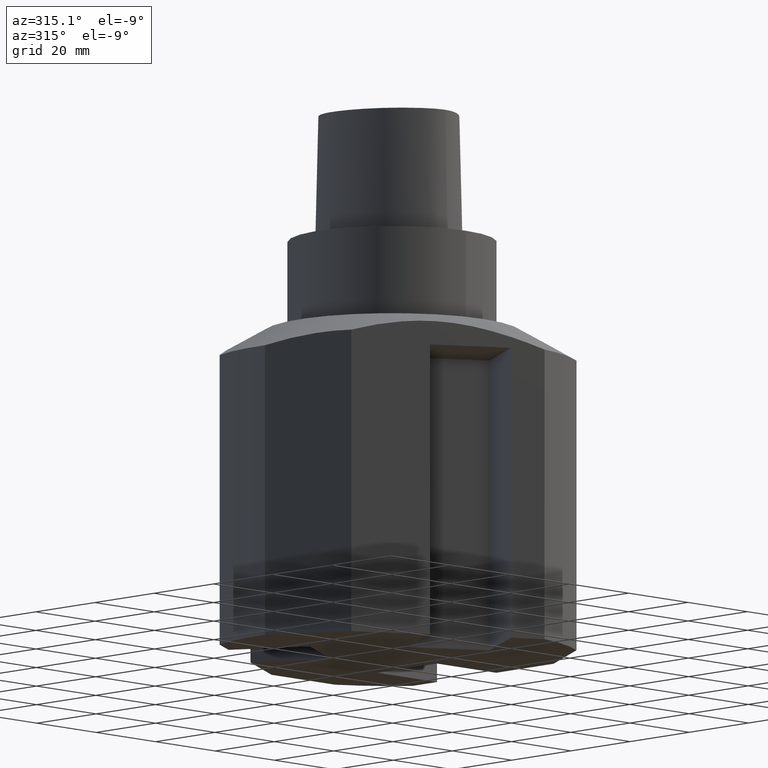
[diagram: clean part render]
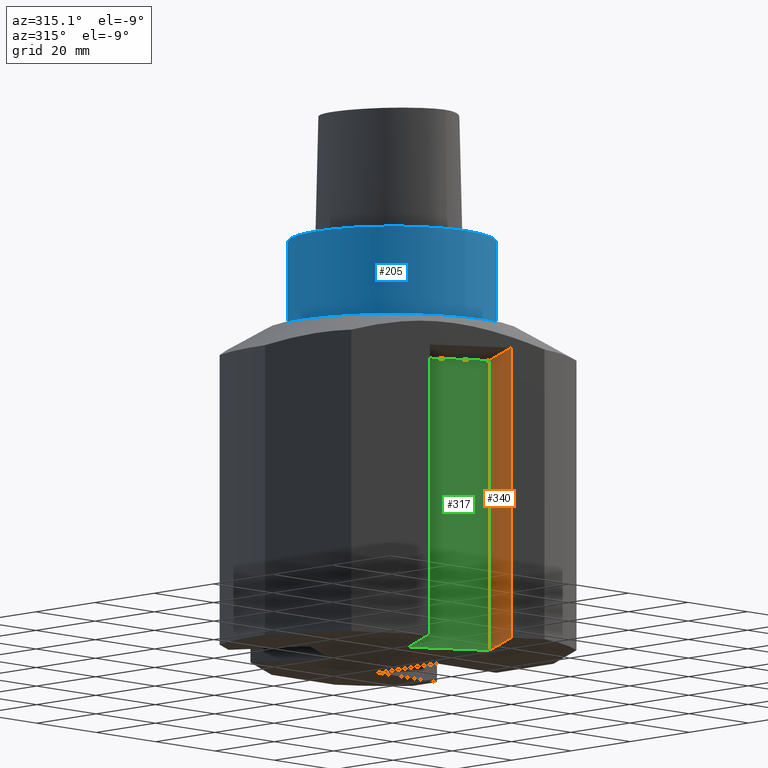
[diagram: same view with three faces highlighted in distinct colors, each labeled with its STEP entity id]
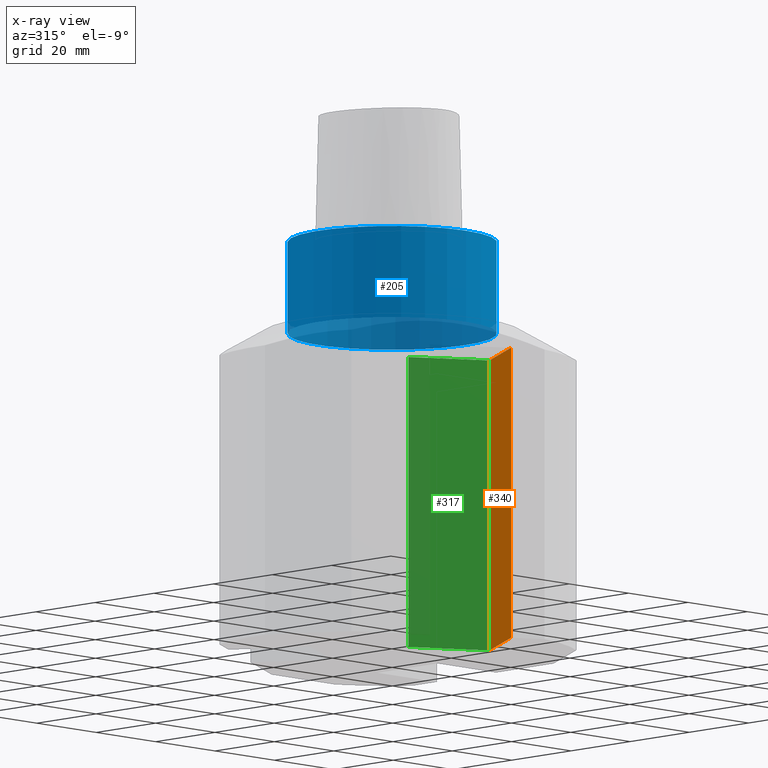
[diagram: x-ray of the same camera — body ghosted, the three highlighted faces saturated]
A machine part, auxiliary view with three faces highlighted in distinct colors.
The next image is the same camera in x-ray (body ghosted, the three faces saturated) — at least one of them is partly hidden behind the body in this view.
Their STEP definitions:

[orange] entity #340 — the highlighted planar face has unit normal (-0.866, 0.5, 0).
#214=EDGE_CURVE('240[2]',#503,#504,#505,.T.);
#238=EDGE_CURVE('240[2]',#480,#504,#537,.T.);
#265=EDGE_CURVE('240[2]',#480,#464,#571,.T.);
#286=EDGE_CURVE('240[2]',#464,#503,#595,.T.);
#340=ADVANCED_FACE('240[2]',(#658),#659,.T.);
#464=VERTEX_POINT('',#995);
#480=VERTEX_POINT('',#1019);
#503=VERTEX_POINT('',#1050);
#504=VERTEX_POINT('',#1051);
#505=LINE('',#1052,#1053);
#537=LINE('',#1113,#1114);
#571=LINE('',#1191,#1192);
#595=LINE('',#1230,#1231);
#658=FACE_OUTER_BOUND('',#1718,.T.);
#659=PLANE('',#1719);
#995=CARTESIAN_POINT('',(-0.179491924311619,-40.3108891324548,-99.9999999999999));
#1019=CARTESIAN_POINT('',(9.82050807568841,-22.990381056766,-99.9999999999999));
#1050=CARTESIAN_POINT('',(-0.179491924311627,-40.3108891324548,-29.9999987706542));
#1051=CARTESIAN_POINT('',(9.8205080756884,-22.990381056766,-29.9999987706541));
#1052=CARTESIAN_POINT('',(-0.179491924311655,-40.3108891324548,-29.9999987706542));
#1053=VECTOR('',#1866,20.0);
#1113=CARTESIAN_POINT('',(9.82050807568839,-22.990381056766,-99.9999999999999));
#1114=VECTOR('',#1894,70.0000012293458);
#1191=CARTESIAN_POINT('',(9.82050807568843,-22.990381056766,-99.9999999999999));
#1192=VECTOR('',#1929,20.0);
#1230=CARTESIAN_POINT('',(-0.179491924311642,-40.3108891324548,-99.9999999999999));
#1231=VECTOR('',#1956,70.0000012293457);
#1718=EDGE_LOOP('',(#2041,#2042,#2043,#2044));
#1719=AXIS2_PLACEMENT_3D('',#2045,#2046,#2047);
#1866=DIRECTION('',(0.500000000000003,0.866025403784437,0.0));
#1894=DIRECTION('',(0.0,0.0,1.0));
#1929=DIRECTION('',(-0.500000000000002,-0.866025403784438,0.0));
#1956=DIRECTION('',(0.0,0.0,1.0));
#2041=ORIENTED_EDGE('',*,*,#286,.T.);
#2042=ORIENTED_EDGE('',*,*,#214,.T.);
#2043=ORIENTED_EDGE('',*,*,#238,.F.);
#2044=ORIENTED_EDGE('',*,*,#265,.T.);
#2045=CARTESIAN_POINT('',(4.82050807568824,-31.6506350946106,-261.0));
#2046=DIRECTION('',(-0.866025403784438,0.500000000000001,1.22464679914735E-016));
#2047=DIRECTION('',(1.41410031829987E-016,0.0,1.0));

[blue] entity #205 — the highlighted cylindrical surface (bore or boss wall) has radius 24.9899 mm, axis along (0, -0, -1).
#166=EDGE_CURVE('240[2]',#435,#435,#436,.T.);
#205=ADVANCED_FACE('240[2]',(#488,#489),#490,.T.);
#250=EDGE_CURVE('240[2]',#551,#551,#552,.T.);
#435=VERTEX_POINT('',#811);
#436=CIRCLE('',#812,24.9898891324553);
#488=FACE_BOUND('',#1030,.T.);
#489=FACE_BOUND('',#1031,.T.);
#490=CYLINDRICAL_SURFACE('',#1032,24.9898891324553);
#551=VERTEX_POINT('',#1163);
#552=CIRCLE('',#1164,24.9898891324553);
#811=CARTESIAN_POINT('',(4.40749015423018E-015,-24.9898891324553,-21.9999983906745));
#812=AXIS2_PLACEMENT_3D('',#1767,#1768,#1769);
#1030=EDGE_LOOP('',(#1843));
#1031=EDGE_LOOP('',(#1844));
#1032=AXIS2_PLACEMENT_3D('',#1845,#1846,#1847);
#1163=CARTESIAN_POINT('',(3.06037877371085E-015,-24.9898891324553,1.4210854715202E-014));
#1164=AXIS2_PLACEMENT_3D('',#1898,#1899,#1900);
#1767=CARTESIAN_POINT('',(1.34711138051932E-015,0.0,-21.9999983906745));
#1768=DIRECTION('',(0.0,0.0,1.0));
#1769=DIRECTION('',(0.0,-1.0,0.0));
#1843=ORIENTED_EDGE('',*,*,#166,.T.);
#1844=ORIENTED_EDGE('',*,*,#250,.F.);
#1845=CARTESIAN_POINT('',(6.73555690259659E-016,0.0,-10.9999991953372));
#1846=DIRECTION('',(0.0,-0.0,-1.0));
#1847=DIRECTION('',(0.0,-1.0,0.0));
#1898=CARTESIAN_POINT('',(-3.15544362088405E-030,0.0,0.0));
#1899=DIRECTION('',(0.0,0.0,1.0));
#1900=DIRECTION('',(0.0,-1.0,0.0));

[green] entity #317 — the highlighted planar face has unit normal (-0.5, -0.866, 0).
#199=EDGE_CURVE('240[2]',#398,#480,#481,.T.);
#238=EDGE_CURVE('240[2]',#480,#504,#537,.T.);
#242=EDGE_CURVE('240[2]',#398,#386,#541,.T.);
#248=EDGE_CURVE('240[2]',#504,#386,#549,.T.);
#317=ADVANCED_FACE('240[2]',(#632),#633,.T.);
#386=VERTEX_POINT('',#723);
#398=VERTEX_POINT('',#739);
#480=VERTEX_POINT('',#1019);
#481=LINE('',#1020,#1021);
#504=VERTEX_POINT('',#1051);
#537=LINE('',#1113,#1114);
#541=LINE('',#1121,#1122);
#549=LINE('',#1159,#1160);
#632=FACE_OUTER_BOUND('',#1677,.T.);
#633=PLANE('',#1678);
#723=CARTESIAN_POINT('',(-7.50000000000039,-12.9903810567661,-29.9999987706542));
#739=CARTESIAN_POINT('',(-7.50000000000041,-12.9903810567661,-99.9999999999999));
#1019=CARTESIAN_POINT('',(9.82050807568841,-22.990381056766,-99.9999999999999));
#1020=CARTESIAN_POINT('',(-7.50000000000041,-12.9903810567661,-99.9999999999999));
#1021=VECTOR('',#1833,20.0);
#1051=CARTESIAN_POINT('',(9.8205080756884,-22.990381056766,-29.9999987706541));
#1113=CARTESIAN_POINT('',(9.82050807568839,-22.990381056766,-99.9999999999999));
#1114=VECTOR('',#1894,70.0000012293458);
#1121=CARTESIAN_POINT('',(-7.50000000000044,-12.9903810567661,-99.9999999999999));
#1122=VECTOR('',#1896,70.0000012293457);
#1159=CARTESIAN_POINT('',(9.8205080756884,-22.990381056766,-29.9999987706542));
#1160=VECTOR('',#1897,20.0);
#1677=EDGE_LOOP('',(#2006,#2007,#2008,#2009));
#1678=AXIS2_PLACEMENT_3D('',#2010,#2011,#2012);
#1833=DIRECTION('',(0.86602540378444,-0.499999999999997,0.0));
#1894=DIRECTION('',(0.0,0.0,1.0));
#1896=DIRECTION('',(0.0,0.0,1.0));
#1897=DIRECTION('',(-0.866025403784441,0.499999999999996,-3.55271367880051E-015));
#2006=ORIENTED_EDGE('',*,*,#199,.T.);
#2007=ORIENTED_EDGE('',*,*,#238,.T.);
#2008=ORIENTED_EDGE('',*,*,#248,.T.);
#2009=ORIENTED_EDGE('',*,*,#242,.F.);
#2010=CARTESIAN_POINT('',(1.16025403784396,-17.990381056766,-261.0));
#2011=DIRECTION('',(-0.499999999999997,-0.86602540378444,6.12323399573674E-017));
#2012=DIRECTION('',(-0.86602540378444,0.499999999999997,0.0));